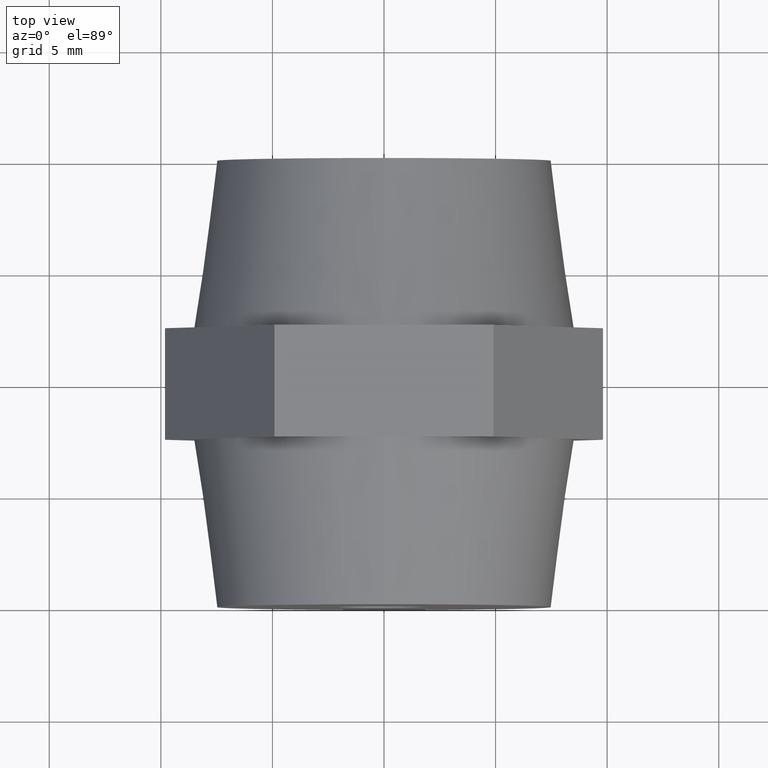
[diagram: clean part render]
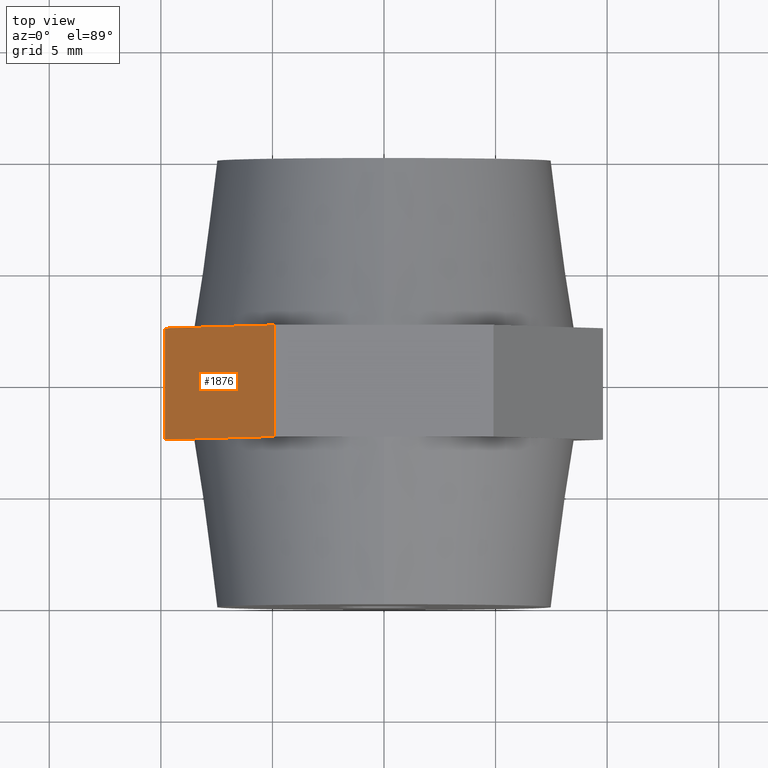
[diagram: same view with one face highlighted and labeled with its STEP entity id]
A machine part, top view. The second image highlights one B-rep face of the part: STEP entity #1876.
In plain terms, the highlighted planar face has unit normal (0.866, 0, -0.5).
Its self-contained STEP definition (entity closure, byte-faithful):
#6 = PLANE ( 'NONE',  #1920 ) ;
#65 = DIRECTION ( 'NONE',  ( 0.4999999999999998900, 0.0000000000000000000, 0.8660254037844387100 ) ) ;
#258 = CARTESIAN_POINT ( 'NONE',  ( -4.907477288111829600, 2.500000000000000000, 8.500000000000000000 ) ) ;
#329 = EDGE_CURVE ( 'NONE', #2843, #1649, #2841, .T. ) ;
#376 = EDGE_CURVE ( 'NONE', #2255, #1170, #2035, .T. ) ;
#613 = LINE ( 'NONE', #2138, #3713 ) ;
#758 = CARTESIAN_POINT ( 'NONE',  ( -4.907477288111829600, -2.500000000000000000, 8.500000000000000000 ) ) ;
#840 = EDGE_CURVE ( 'NONE', #2255, #2217, #2631, .T. ) ;
#849 = VECTOR ( 'NONE', #2026, 1000.000000000000000 ) ;
#956 = EDGE_CURVE ( 'NONE', #2217, #1380, #613, .T. ) ;
#974 = ORIENTED_EDGE ( 'NONE', *, *, #956, .T. ) ;
#1151 = CARTESIAN_POINT ( 'NONE',  ( -9.814954576223648500, 2.500000000000000000, 1.646851074874740100E-015 ) ) ;
#1170 = VERTEX_POINT ( 'NONE', #2275 ) ;
#1369 = ORIENTED_EDGE ( 'NONE', *, *, #376, .F. ) ;
#1380 = VERTEX_POINT ( 'NONE', #2920 ) ;
#1511 = VECTOR ( 'NONE', #2273, 1000.000000000000000 ) ;
#1515 = CARTESIAN_POINT ( 'NONE',  ( -9.814954576223648500, 2.500000000000000000, 1.646851074874740100E-015 ) ) ;
#1519 = DIRECTION ( 'NONE',  ( -0.4999999999999998900, 0.0000000000000000000, -0.8660254037844387100 ) ) ;
#1543 = FACE_OUTER_BOUND ( 'NONE', #3480, .T. ) ;
#1649 = VERTEX_POINT ( 'NONE', #758 ) ;
#1656 = VECTOR ( 'NONE', #1722, 1000.000000000000000 ) ;
#1722 = DIRECTION ( 'NONE',  ( 0.4999999999999998900, 0.0000000000000000000, 0.8660254037844387100 ) ) ;
#1784 = ORIENTED_EDGE ( 'NONE', *, *, #2339, .F. ) ;
#1876 = ADVANCED_FACE ( 'NONE', ( #1543 ), #6, .F. ) ;
#1889 = ORIENTED_EDGE ( 'NONE', *, *, #329, .F. ) ;
#1920 = AXIS2_PLACEMENT_3D ( 'NONE', #3262, #2734, #1519 ) ;
#2026 = DIRECTION ( 'NONE',  ( 0.4999999999999998900, 0.0000000000000000000, 0.8660254037844387100 ) ) ;
#2035 = LINE ( 'NONE', #3182, #849 ) ;
#2138 = CARTESIAN_POINT ( 'NONE',  ( -9.814954576223648500, -2.500000000000000000, 1.646851074874740100E-015 ) ) ;
#2217 = VERTEX_POINT ( 'NONE', #3490 ) ;
#2255 = VERTEX_POINT ( 'NONE', #2617 ) ;
#2273 = DIRECTION ( 'NONE',  ( 0.0000000000000000000, -1.000000000000000000, 0.0000000000000000000 ) ) ;
#2275 = CARTESIAN_POINT ( 'NONE',  ( -7.361215932167740000, 2.500000000000000000, 4.250000000000000000 ) ) ;
#2285 = EDGE_CURVE ( 'NONE', #1380, #1649, #2694, .T. ) ;
#2339 = EDGE_CURVE ( 'NONE', #1170, #2843, #3159, .T. ) ;
#2525 = ORIENTED_EDGE ( 'NONE', *, *, #2285, .T. ) ;
#2617 = CARTESIAN_POINT ( 'NONE',  ( -9.814954576223648500, 2.500000000000000000, 1.646851074874740100E-015 ) ) ;
#2631 = LINE ( 'NONE', #1515, #3422 ) ;
#2682 = CARTESIAN_POINT ( 'NONE',  ( -9.814954576223648500, -2.500000000000000000, 1.646851074874740100E-015 ) ) ;
#2694 = LINE ( 'NONE', #2682, #3021 ) ;
#2734 = DIRECTION ( 'NONE',  ( 0.8660254037844387100, 0.0000000000000000000, -0.4999999999999998900 ) ) ;
#2754 = ORIENTED_EDGE ( 'NONE', *, *, #840, .T. ) ;
#2841 = LINE ( 'NONE', #3162, #1511 ) ;
#2843 = VERTEX_POINT ( 'NONE', #258 ) ;
#2920 = CARTESIAN_POINT ( 'NONE',  ( -7.361215932167730200, -2.500000000000000000, 4.250000000000000000 ) ) ;
#3021 = VECTOR ( 'NONE', #3549, 1000.000000000000000 ) ;
#3159 = LINE ( 'NONE', #1151, #1656 ) ;
#3162 = CARTESIAN_POINT ( 'NONE',  ( -4.907477288111829600, 2.500000000000000000, 8.500000000000000000 ) ) ;
#3182 = CARTESIAN_POINT ( 'NONE',  ( -9.814954576223648500, 2.500000000000000000, 1.646851074874740100E-015 ) ) ;
#3262 = CARTESIAN_POINT ( 'NONE',  ( -9.814954576223648500, 2.500000000000000000, 1.646851074874740100E-015 ) ) ;
#3422 = VECTOR ( 'NONE', #3612, 1000.000000000000000 ) ;
#3480 = EDGE_LOOP ( 'NONE', ( #974, #2525, #1889, #1784, #1369, #2754 ) ) ;
#3490 = CARTESIAN_POINT ( 'NONE',  ( -9.814954576223648500, -2.500000000000000000, 1.646851074874740100E-015 ) ) ;
#3549 = DIRECTION ( 'NONE',  ( 0.4999999999999998900, 0.0000000000000000000, 0.8660254037844387100 ) ) ;
#3612 = DIRECTION ( 'NONE',  ( 0.0000000000000000000, -1.000000000000000000, 0.0000000000000000000 ) ) ;
#3713 = VECTOR ( 'NONE', #65, 1000.000000000000000 ) ;